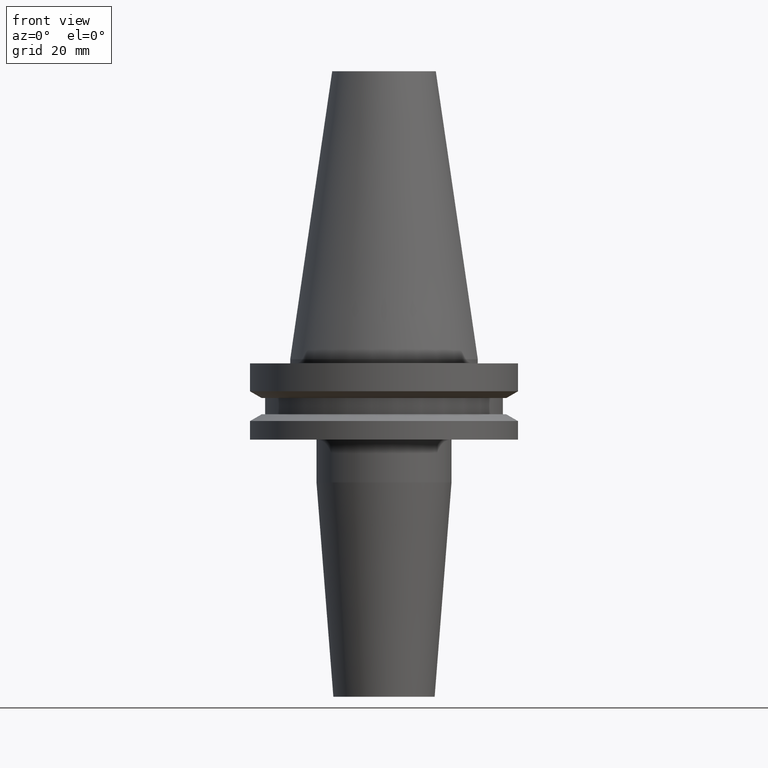
[diagram: clean part render]
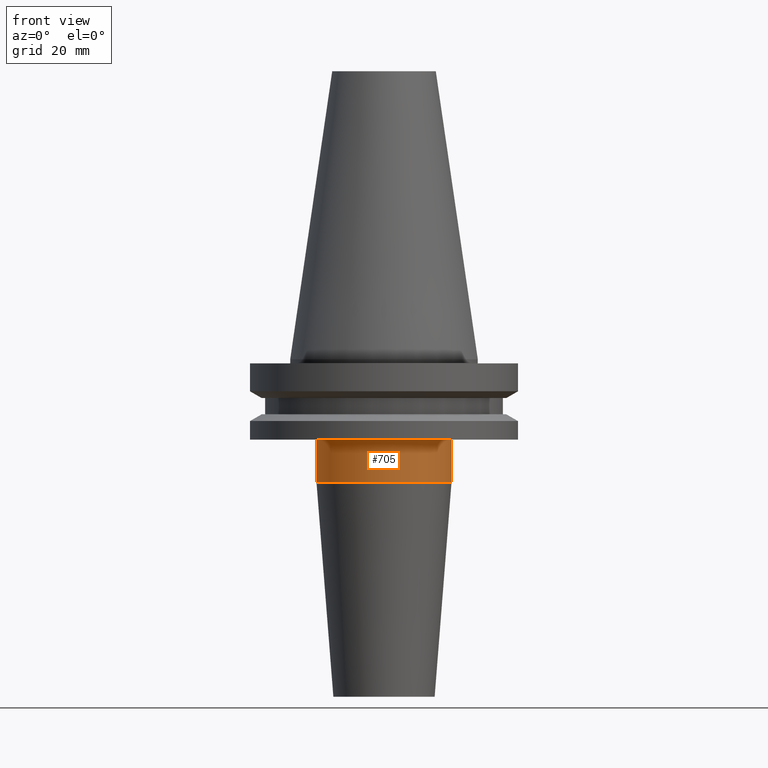
[diagram: same view with one face highlighted and labeled with its STEP entity id]
A machine part, front view. The second image highlights one B-rep face of the part: STEP entity #705.
In plain terms, the highlighted cylindrical surface (partial cylindrical patch) has radius 16 mm, axis along (-0, -0, 1).
Its self-contained STEP definition (entity closure, byte-faithful):
#10 = VERTEX_POINT ( 'NONE', #78 ) ;
#15 = CIRCLE ( 'NONE', #419, 15.99999999999999289 ) ;
#78 = CARTESIAN_POINT ( 'NONE',  ( 15.99999999999999289, 0.000000000000000000, -29.17518105529640948 ) ) ;
#93 = CARTESIAN_POINT ( 'NONE',  ( -15.99999999999999289, 1.959434878635764343E-15, -29.17518105529640948 ) ) ;
#107 = CARTESIAN_POINT ( 'NONE',  ( 0.000000000000000000, 0.000000000000000000, -19.04999999999999716 ) ) ;
#116 = ORIENTED_EDGE ( 'NONE', *, *, #644, .F. ) ;
#117 = DIRECTION ( 'NONE',  ( 1.000000000000000000, 0.000000000000000000, 0.000000000000000000 ) ) ;
#123 = VERTEX_POINT ( 'NONE', #632 ) ;
#156 = DIRECTION ( 'NONE',  ( -0.000000000000000000, -0.000000000000000000, 1.000000000000000000 ) ) ;
#190 = ORIENTED_EDGE ( 'NONE', *, *, #558, .T. ) ;
#201 = CARTESIAN_POINT ( 'NONE',  ( 15.99999999999999289, 0.000000000000000000, 0.000000000000000000 ) ) ;
#204 = EDGE_LOOP ( 'NONE', ( #421, #269, #190, #116 ) ) ;
#210 = VECTOR ( 'NONE', #601, 1000.000000000000000 ) ;
#221 = CARTESIAN_POINT ( 'NONE',  ( 0.000000000000000000, 0.000000000000000000, 0.000000000000000000 ) ) ;
#232 = DIRECTION ( 'NONE',  ( 1.000000000000000000, 0.000000000000000000, 0.000000000000000000 ) ) ;
#269 = ORIENTED_EDGE ( 'NONE', *, *, #304, .T. ) ;
#277 = CYLINDRICAL_SURFACE ( 'NONE', #685, 15.99999999999999289 ) ;
#279 = VERTEX_POINT ( 'NONE', #93 ) ;
#283 = LINE ( 'NONE', #352, #210 ) ;
#299 = EDGE_CURVE ( 'NONE', #279, #123, #283, .T. ) ;
#304 = EDGE_CURVE ( 'NONE', #279, #10, #760, .T. ) ;
#352 = CARTESIAN_POINT ( 'NONE',  ( -15.99999999999999289, 1.959434878635764343E-15, 0.000000000000000000 ) ) ;
#357 = AXIS2_PLACEMENT_3D ( 'NONE', #541, #773, #232 ) ;
#419 = AXIS2_PLACEMENT_3D ( 'NONE', #107, #156, #117 ) ;
#421 = ORIENTED_EDGE ( 'NONE', *, *, #299, .F. ) ;
#438 = DIRECTION ( 'NONE',  ( 1.000000000000000000, 0.000000000000000000, 0.000000000000000000 ) ) ;
#454 = DIRECTION ( 'NONE',  ( -0.000000000000000000, -0.000000000000000000, 1.000000000000000000 ) ) ;
#499 = VECTOR ( 'NONE', #454, 1000.000000000000000 ) ;
#509 = LINE ( 'NONE', #201, #499 ) ;
#541 = CARTESIAN_POINT ( 'NONE',  ( 0.000000000000000000, 0.000000000000000000, -29.17518105529640948 ) ) ;
#558 = EDGE_CURVE ( 'NONE', #10, #585, #509, .T. ) ;
#585 = VERTEX_POINT ( 'NONE', #591 ) ;
#586 = FACE_OUTER_BOUND ( 'NONE', #204, .T. ) ;
#591 = CARTESIAN_POINT ( 'NONE',  ( 15.99999999999999289, 0.000000000000000000, -19.04999999999999716 ) ) ;
#601 = DIRECTION ( 'NONE',  ( -0.000000000000000000, -0.000000000000000000, 1.000000000000000000 ) ) ;
#632 = CARTESIAN_POINT ( 'NONE',  ( -15.99999999999999289, 1.959434878635764343E-15, -19.04999999999999716 ) ) ;
#644 = EDGE_CURVE ( 'NONE', #123, #585, #15, .T. ) ;
#668 = DIRECTION ( 'NONE',  ( -0.000000000000000000, -0.000000000000000000, 1.000000000000000000 ) ) ;
#685 = AXIS2_PLACEMENT_3D ( 'NONE', #221, #668, #438 ) ;
#705 = ADVANCED_FACE ( 'NONE', ( #586 ), #277, .T. ) ;
#760 = CIRCLE ( 'NONE', #357, 15.99999999999999289 ) ;
#773 = DIRECTION ( 'NONE',  ( -0.000000000000000000, -0.000000000000000000, 1.000000000000000000 ) ) ;